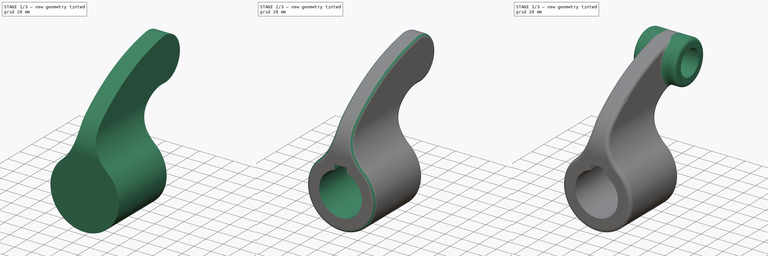
[diagram: build sequence overview — one tinted view per stage of 3, left to right]
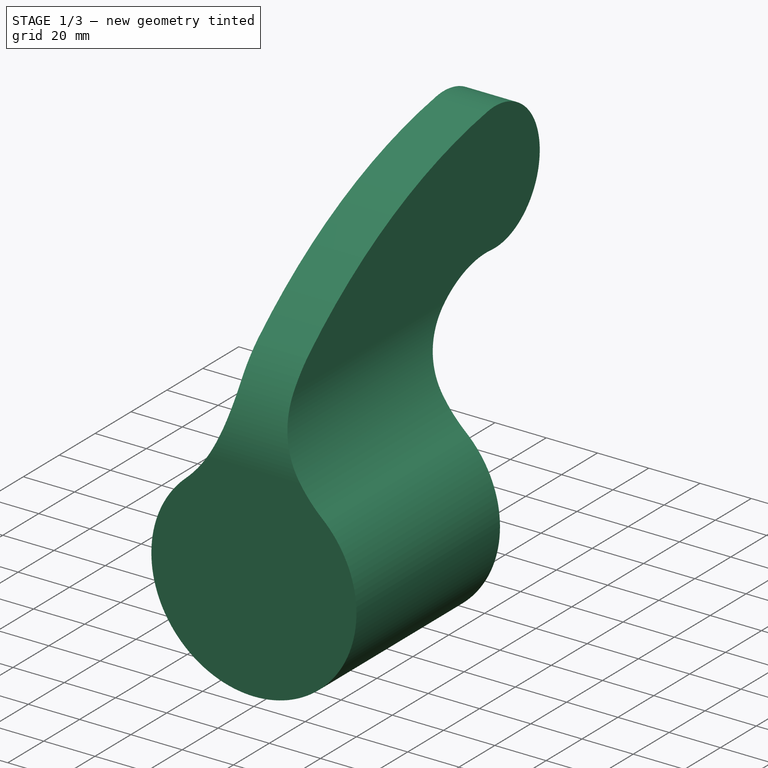
[diagram: stage 1 of 3 — iso view after this stage's code; geometry added in this stage tinted green]
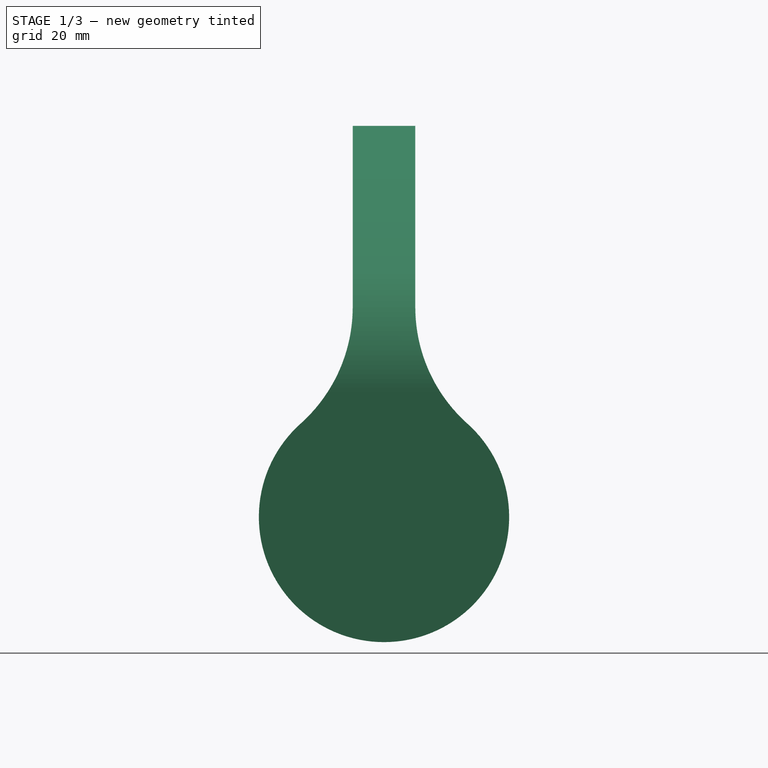
[diagram: stage 1 of 3 — front view after this stage's code; geometry added in this stage tinted green]
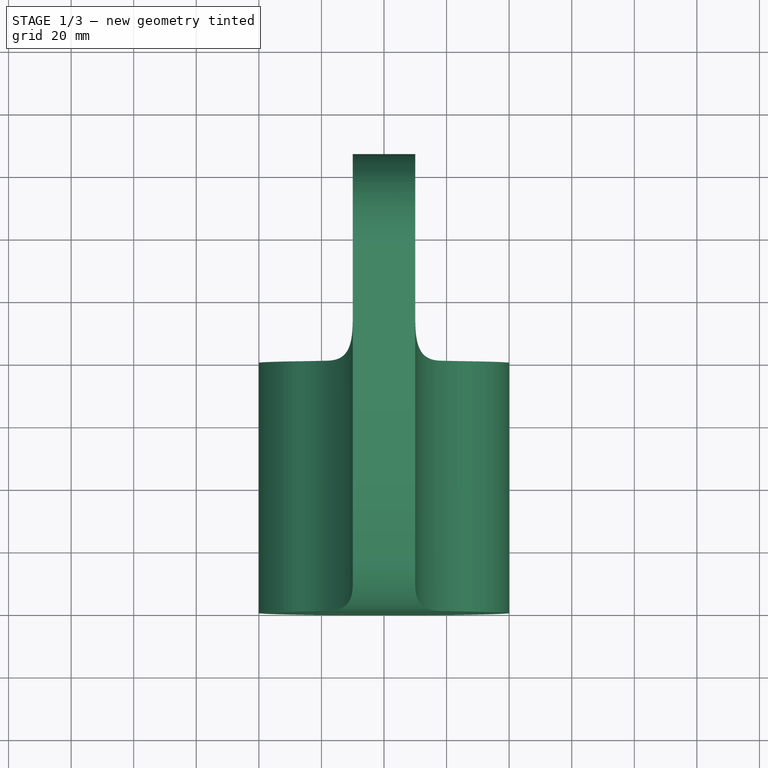
[diagram: stage 1 of 3 — top view after this stage's code; geometry added in this stage tinted green]
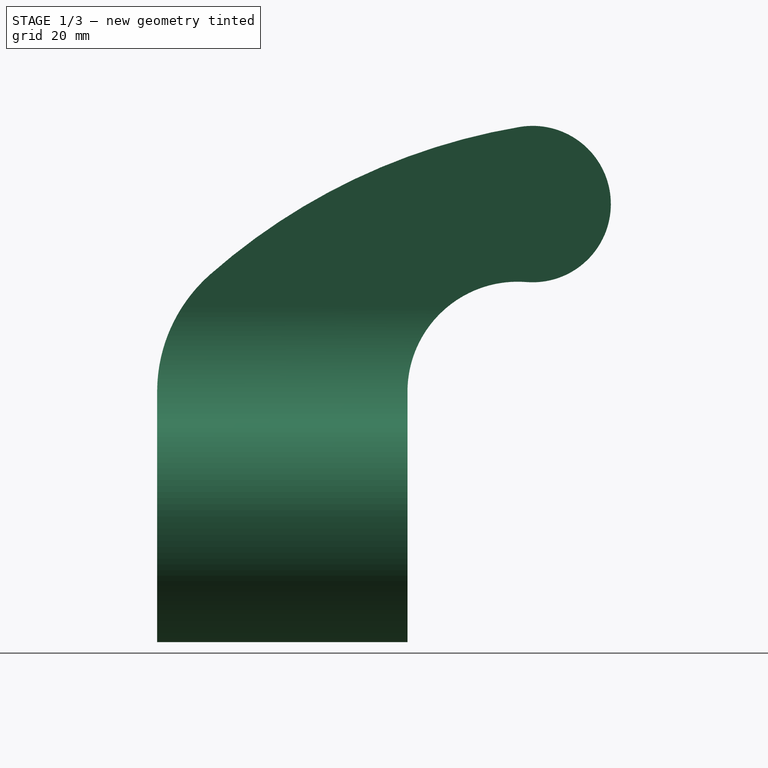
[diagram: stage 1 of 3 — right view after this stage's code; geometry added in this stage tinted green]
FCSTD DOCUMENT  (FreeCAD 1.0R39319 (Git))
Label: Mania2007
License: All rights reserved
LicenseURL: https://en.wikipedia.org/wiki/All_rights_reserved
objects: Sketcher::SketchObject×5, PartDesign::Pad×3, PartDesign::Body×2, PartDesign::Pocket×2, PartDesign::Fillet×2, PartDesign::Boolean×1
note: 35 computed .brp shape members not serialized (recipe doc carries the construction recipe); baked Part::Feature solids carry a one-line shape summary decoded from their .brp

FEATURE [Sketcher::SketchObject] Sketch
  ArcFitTolerance = 1e-06
  AttachmentSupport = -> [XZ_Plane]
  FullyConstrained = true
  MakeInternals = false
  MapMode = 5
  Placement = pos=(0,0,0) rot=(1,0,0;1.5708rad)
  sketch-geometry (6):
    g0: ArcOfCircle CenterX=0 CenterY=-40 CenterZ=0 NormalX=0 NormalY=0 NormalZ=1 AngleXU=0 Radius=40 StartAngle=2.30052 EndAngle=7.12425
    g1: LineSegment StartX=-10 StartY=27.082 StartZ=0 EndX=-10 EndY=177.082 EndZ=0
    g2: LineSegment StartX=-10 StartY=177.082 StartZ=0 EndX=10 EndY=177.082 EndZ=0
    g3: LineSegment StartX=10 StartY=177.082 StartZ=0 EndX=10 EndY=27.082 EndZ=0
    g4: ArcOfCircle CenterX=60 CenterY=27.082 CenterZ=0 NormalX=0 NormalY=0 NormalZ=1 AngleXU=0 Radius=50 StartAngle=3.14159 EndAngle=3.98266
    g5: ArcOfCircle CenterX=-60 CenterY=27.082 CenterZ=0 NormalX=0 NormalY=0 NormalZ=1 AngleXU=0 Radius=50 StartAngle=5.44212 EndAngle=6.28319
  constraints (16):
    c: PointOnObject(g0,g-2)
    c: Diameter(g0) = 80
    c: Tangent(g0,g-1)
    c: Vertical(g1)
    c: Coincident(g1,g2)
    c: Coincident(g2,g3)
    c: Vertical(g3)
    c: DistanceX(g2,g2) = 20
    c: Symmetric(g2,g1,g-2)
    c: Radius(g4) = 50
    c: Tangent(g3,g4) = -1.5708
    c: Tangent(g0,g4) = 1.5708
    c: Equal(g4,g5)
    c: Tangent(g1,g5) = -1.5708
    c: Tangent(g0,g5) = 1.5708
    c: DistanceY(g3,g3) = 150
FEATURE [PartDesign::Pad] Pad  label="frontpad"
  Direction = (0,-1,2e-16)
  Length = 160
  Length2 = 10
  Placement = pos=(0,0,0) rot=(1,0,0;1.5708rad)
  Profile = -> Sketch
  ReferenceAxis = -> Sketch [N_Axis]
  Refine = true
  Reversed = true
  Suppressed = false
  Type = 0
FEATURE [Sketcher::SketchObject] Sketch004
  ArcFitTolerance = 1e-06
  AttachmentSupport = -> [YZ_Plane001]
  FullyConstrained = true
  MakeInternals = false
  MapMode = 5
  Placement = pos=(0,0,0) rot=(0.57735,0.57735,0.57735;2.0944rad)
  sketch-geometry (8):
    g0: LineSegment StartX=0 StartY=6.1e-15 StartZ=0 EndX=0 EndY=-80 EndZ=0
    g1: LineSegment StartX=0 StartY=-80 StartZ=0 EndX=80 EndY=-80 EndZ=0
    g2: LineSegment StartX=80 StartY=-80 StartZ=0 EndX=80 EndY=7.8302e-12 EndZ=0
    g3: ArcOfCircle CenterX=50 CenterY=0 CenterZ=0 NormalX=0 NormalY=0 NormalZ=1 AngleXU=0 Radius=50 StartAngle=2.29298 EndAngle=3.14159
    g4: ArcOfCircle CenterX=115.192 CenterY=-1.72481e-05 CenterZ=0 NormalX=0 NormalY=0 NormalZ=1 AngleXU=0 Radius=35.1923 StartAngle=1.49084 EndAngle=3.14159
    g5: ArcOfCircle CenterX=120 CenterY=60 CenterZ=0 NormalX=0 NormalY=0 NormalZ=1 AngleXU=0 Radius=25 StartAngle=4.63243 EndAngle=8.02135
    g6: GeomPoint X=80 Y=-40 Z=0
    g7: ArcOfCircle CenterX=149.154 CenterY=-112.555 CenterZ=0 NormalX=0 NormalY=0 NormalZ=1 AngleXU=0 Radius=200 StartAngle=1.73817 EndAngle=2.29298
  constraints (21):
    c: Coincident(g-1,g0)
    c: PointOnObject(g0,g-2)
    c: Coincident(g0,g1)
    c: Horizontal(g1)
    c: Coincident(g1,g2)
    c: PointOnObject(g2,g-1)
    c: DistanceY(g0,g0) = 80
    c: Equal(g0,g2)
    c: DistanceX(g1,g1) = 80
    c: PointOnObject(g3,g-1)
    c: Coincident(g3,g0)
    c: Radius(g3) = 50
    c: Radius(g5) = 25
    c: Symmetric(g2,g2,g6)
    c: Distance(g5,g2) = 40
    c: DistanceY(g6,g5) = 100
    c: Tangent(g4,g5) = 1.5708
    c: Tangent(g7,g3) = -1.5708
    c: Tangent(g7,g5) = -1.5708
    c: Radius(g7) = 200
    c: Tangent(g4,g2) = 1.5708
FEATURE [PartDesign::Pad] Pad001  label="rightpad"
  Direction = (1,0,0)
  Length = 100
  Length2 = 10
  Midplane = true
  Placement = pos=(0,0,0) rot=(1,1,1;2.0944rad)
  Profile = -> Sketch004
  ReferenceAxis = -> Sketch004 [N_Axis]
  Refine = true
  Suppressed = false
  Type = 0
FEATURE [PartDesign::Body] Body001
  AllowCompound = false
  Group = -> [Pad001,Sketch004]
  Origin = -> Origin001
  Tip = -> Pad001
FEATURE [PartDesign::Boolean] Boolean
  BaseFeature = -> Pad
  Group = -> [Body001]
  Refine = true
  Suppressed = false
  Type = 2
  UsePlacement = true
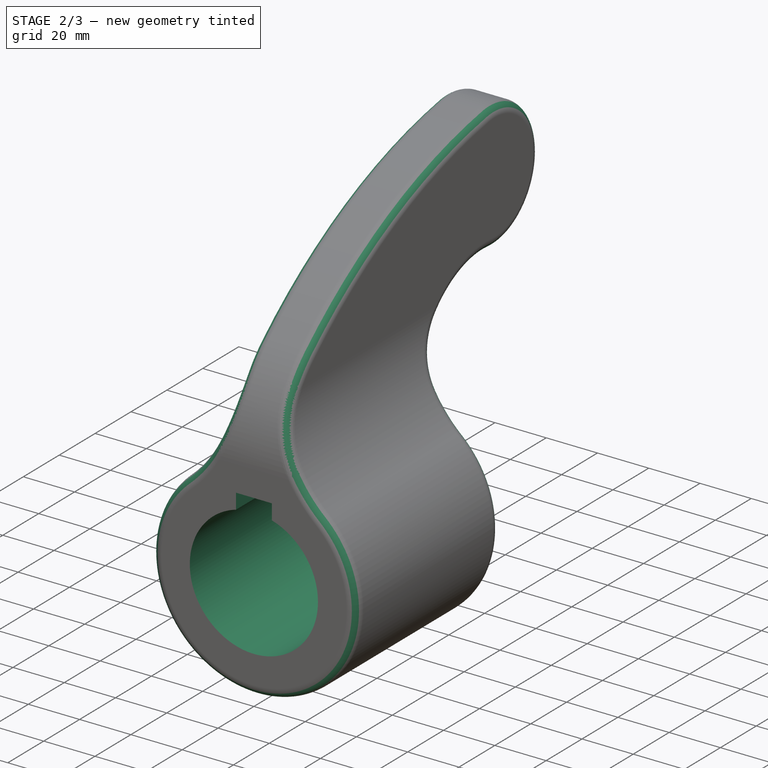
[diagram: stage 2 of 3 — iso view after this stage's code; geometry added in this stage tinted green]
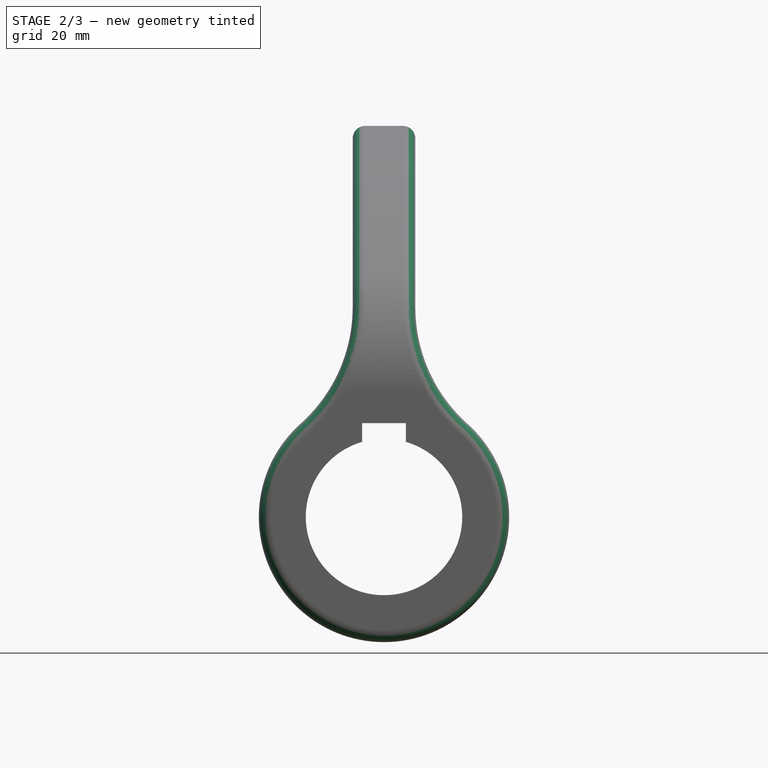
[diagram: stage 2 of 3 — front view after this stage's code; geometry added in this stage tinted green]
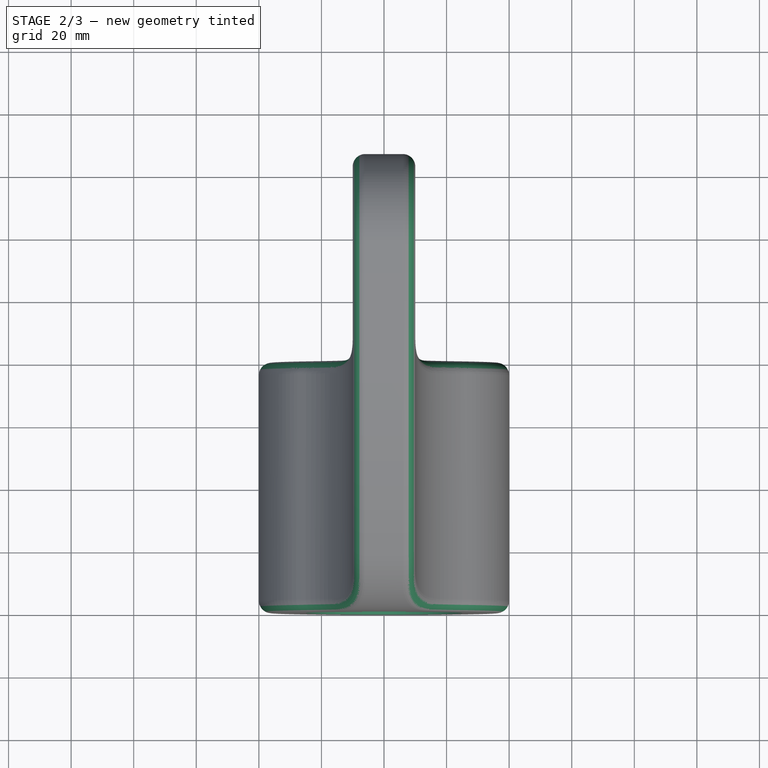
[diagram: stage 2 of 3 — top view after this stage's code; geometry added in this stage tinted green]
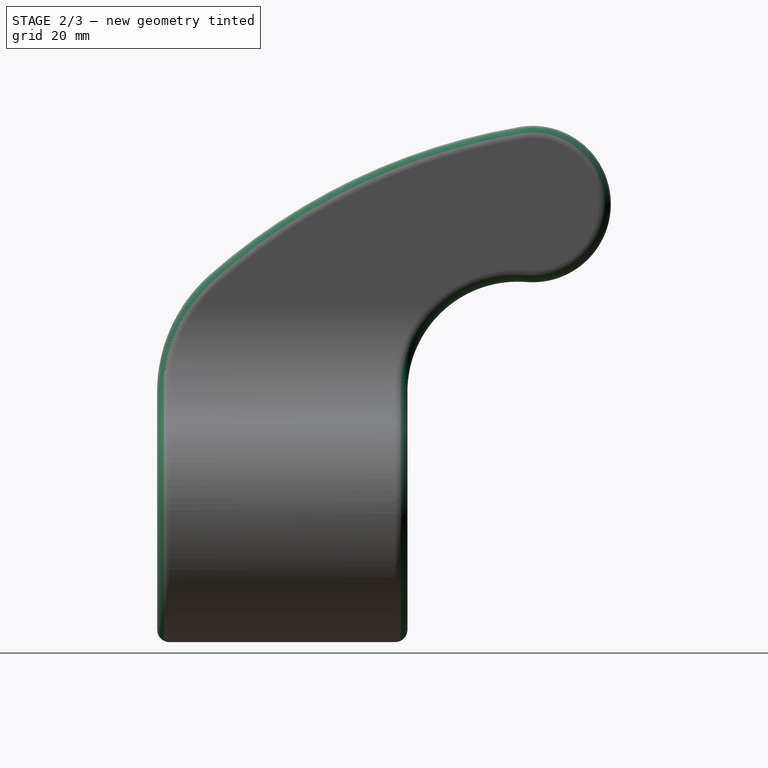
[diagram: stage 2 of 3 — right view after this stage's code; geometry added in this stage tinted green]
FEATURE [Sketcher::SketchObject] Sketch005
  ArcFitTolerance = 1e-06
  AttachmentSupport = -> [Boolean]
  ExternalGeometry = -> [Boolean]
  FullyConstrained = true
  MakeInternals = false
  MapMode = 5
  Placement = pos=(0,1.02e-14,0) rot=(1,0,0;1.5708rad)
  sketch-geometry (5):
    g0: ArcOfCircle CenterX=0 CenterY=-40 CenterZ=0 NormalX=0 NormalY=0 NormalZ=1 AngleXU=0 Radius=25 StartAngle=1.85459 EndAngle=7.57019
    g1: LineSegment StartX=-7 StartY=-16 StartZ=0 EndX=-7 EndY=-10 EndZ=0
    g2: LineSegment StartX=-7 StartY=-10 StartZ=0 EndX=7 EndY=-10 EndZ=0
    g3: LineSegment StartX=7 StartY=-10 StartZ=0 EndX=7 EndY=-16 EndZ=0
    g4: GeomPoint X=0 Y=-65 Z=0
  constraints (13):
    c: Coincident(g0,g-3)
    c: Coincident(g1,g2)
    c: Coincident(g2,g3)
    c: Symmetric(g2,g1,g-2)
    c: Parallel(g3,g1)
    c: Vertical(g1)
    c: DistanceX(g2,g2) = 14
    c: Coincident(g0,g3)
    c: Coincident(g0,g1)
    c: Diameter(g0) = 50
    c: PointOnObject(g4,g0)
    c: PointOnObject(g4,g-2)
    c: Distance(g4,g2) = 55
FEATURE [PartDesign::Pocket] Pocket
  BaseFeature = -> Boolean
  Direction = (0,1,-2e-16)
  Length = 5
  Length2 = 5
  Profile = -> Sketch005
  ReferenceAxis = -> Sketch005 [N_Axis]
  Refine = true
  Suppressed = false
  Type = 1
FEATURE [PartDesign::Fillet] Fillet
  Base = -> Pocket [Edge41,Edge27,Edge38,Edge25]
  BaseFeature = -> Pocket
  Radius = 4
  Refine = true
  SupportTransform = false
  Suppressed = false
  UseAllEdges = false
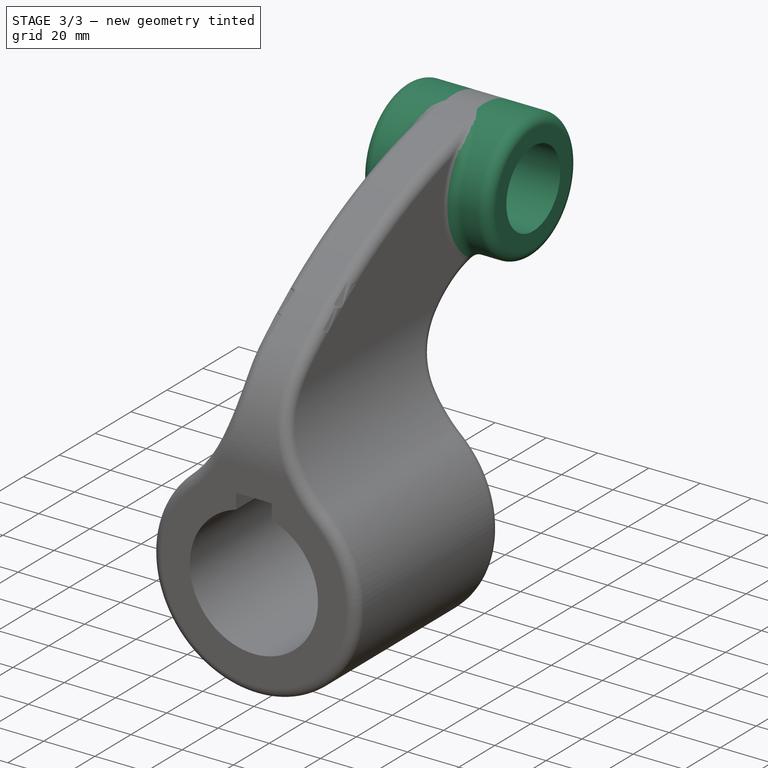
[diagram: stage 3 of 3 — iso view after this stage's code; geometry added in this stage tinted green]
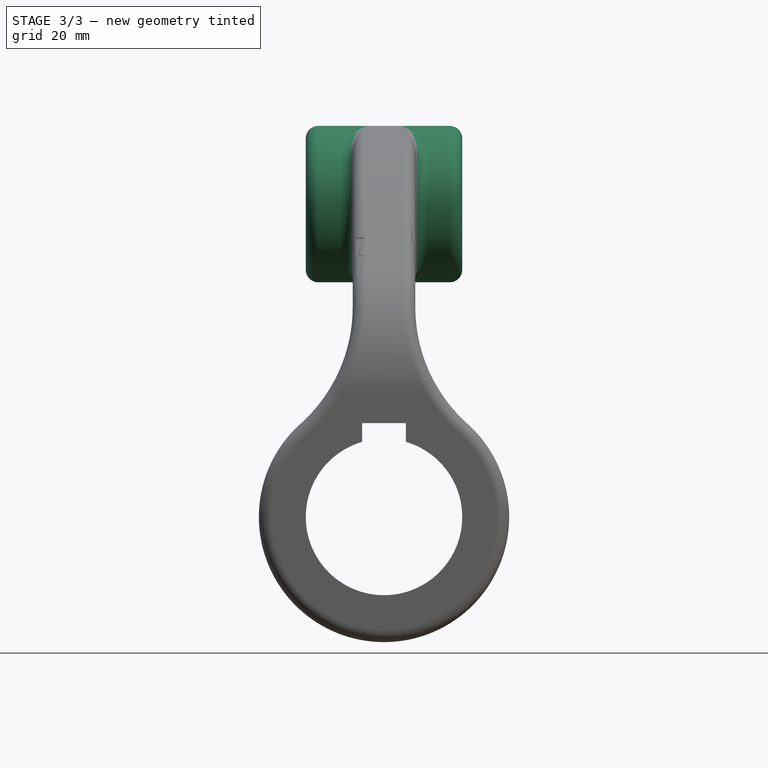
[diagram: stage 3 of 3 — front view after this stage's code; geometry added in this stage tinted green]
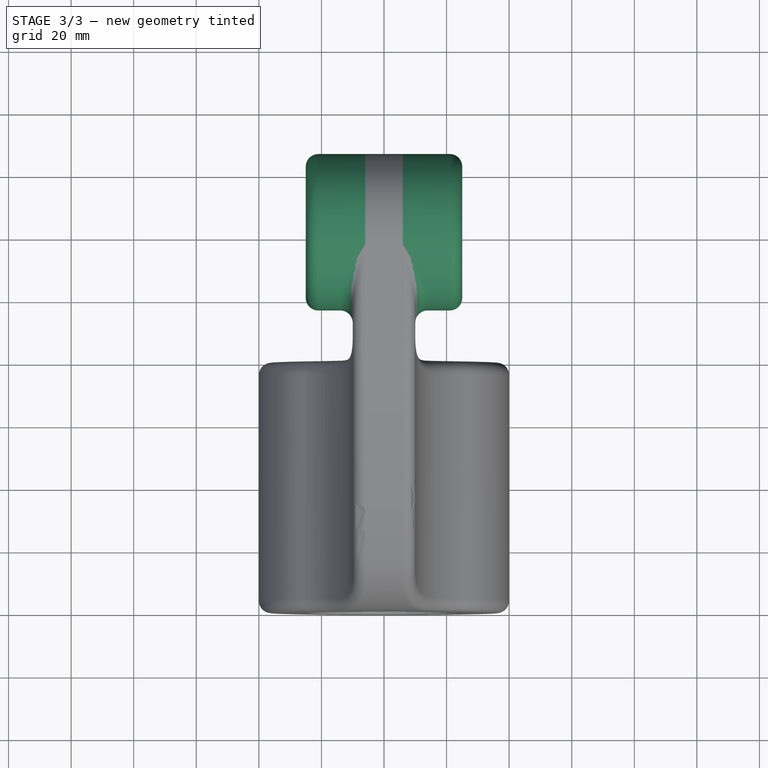
[diagram: stage 3 of 3 — top view after this stage's code; geometry added in this stage tinted green]
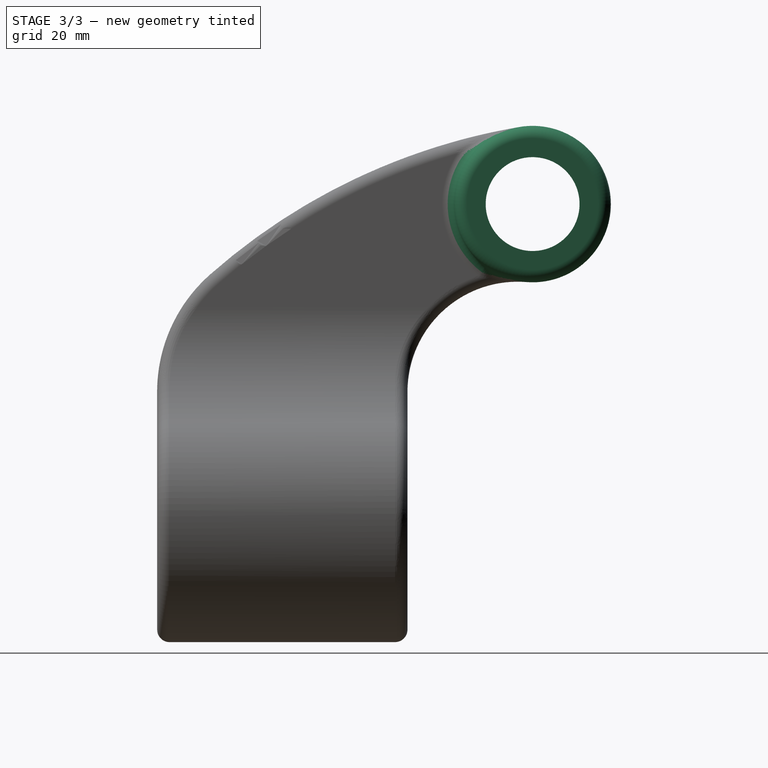
[diagram: stage 3 of 3 — right view after this stage's code; geometry added in this stage tinted green]
FEATURE [Sketcher::SketchObject] Sketch006
  ArcFitTolerance = 1e-06
  AttachmentSupport = -> [YZ_Plane]
  ExternalGeometry = -> [Fillet]
  FullyConstrained = true
  MakeInternals = false
  MapMode = 5
  Placement = pos=(0,0,0) rot=(0.57735,0.57735,0.57735;2.0944rad)
  sketch-geometry (1):
    g0: Circle CenterX=120 CenterY=60 CenterZ=0 NormalX=0 NormalY=0 NormalZ=1 AngleXU=0 Radius=25
  constraints (2):
    c: Coincident(g0,g-3)
    c: Radius(g0) = 25
FEATURE [PartDesign::Pad] Pad002
  BaseFeature = -> Fillet
  Direction = (1,0,0)
  Length = 50
  Length2 = 10
  Midplane = true
  Profile = -> Sketch006
  ReferenceAxis = -> Sketch006 [N_Axis]
  Suppressed = false
  Type = 0
FEATURE [Sketcher::SketchObject] Sketch007
  ArcFitTolerance = 1e-06
  AttachmentSupport = -> [YZ_Plane]
  ExternalGeometry = -> [Pad002]
  FullyConstrained = true
  MakeInternals = false
  MapMode = 5
  Placement = pos=(0,0,0) rot=(0.57735,0.57735,0.57735;2.0944rad)
  sketch-geometry (1):
    g0: Circle CenterX=120 CenterY=60 CenterZ=0 NormalX=0 NormalY=0 NormalZ=1 AngleXU=0 Radius=15
  constraints (2):
    c: Diameter(g0) = 30
    c: Coincident(g0,g-3)
FEATURE [PartDesign::Fillet] Fillet001
  Base = -> Pad002 [Edge64,Edge85,Edge56,Edge80]
  BaseFeature = -> Pad002
  Radius = 4
  Refine = true
  SupportTransform = false
  Suppressed = false
  UseAllEdges = false
FEATURE [PartDesign::Pocket] Pocket001
  BaseFeature = -> Fillet001
  Direction = (-1,0,0)
  Length = 5
  Length2 = 5
  Midplane = true
  Profile = -> Sketch007
  ReferenceAxis = -> Sketch007 [N_Axis]
  Refine = true
  Suppressed = false
  Type = 1
FEATURE [PartDesign::Body] Body
  AllowCompound = false
  Group = -> [Pad,Sketch,Boolean,Sketch005,Pocket,Fillet,Sketch006,Pad002,Sketch007,Fillet001,Pocket001]
  Origin = -> Origin
  Tip = -> Pocket001
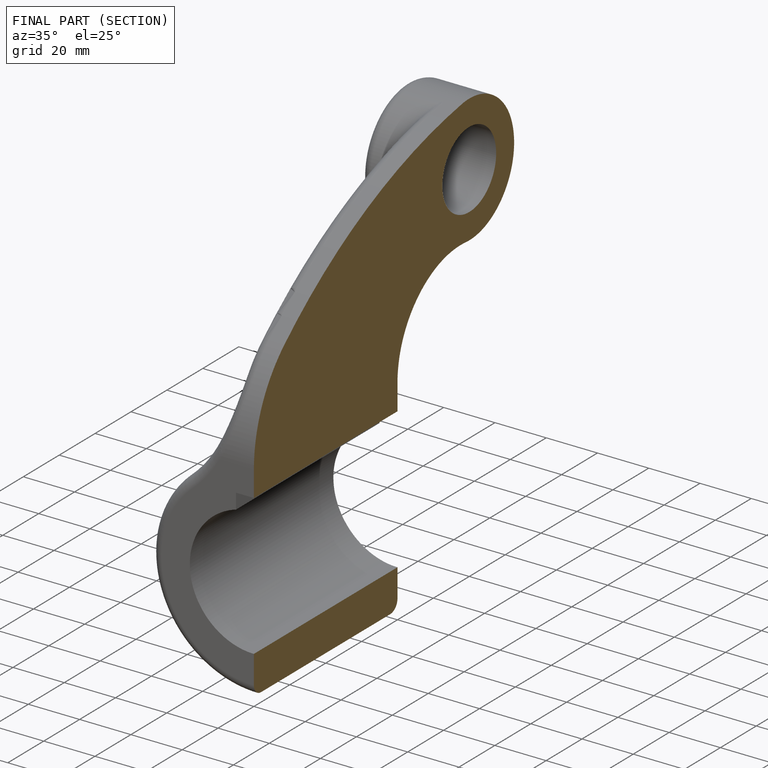
[diagram: finished part — half-section view (interior)]
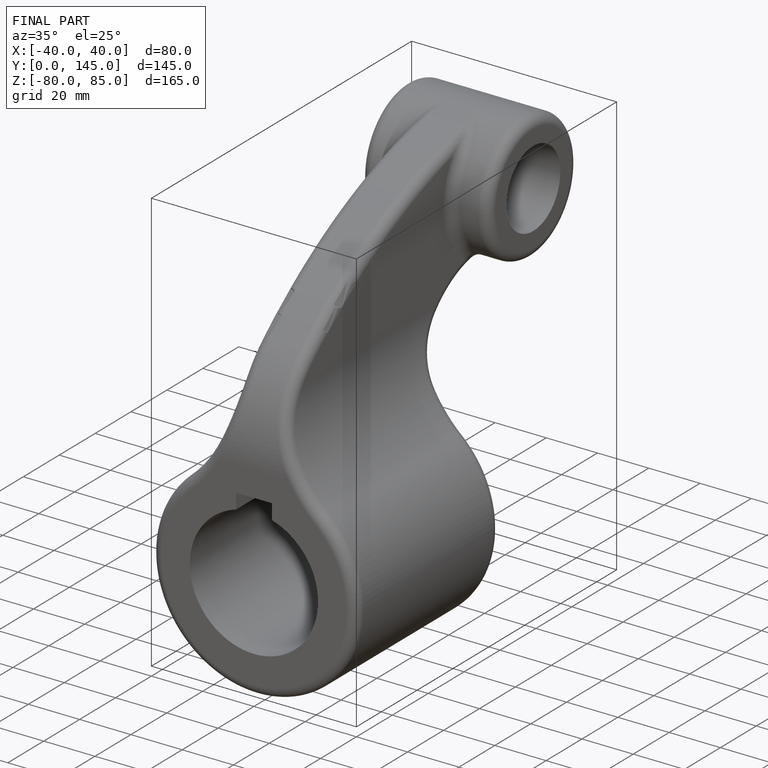
[diagram: finished part — iso view with bounding-box wireframe]
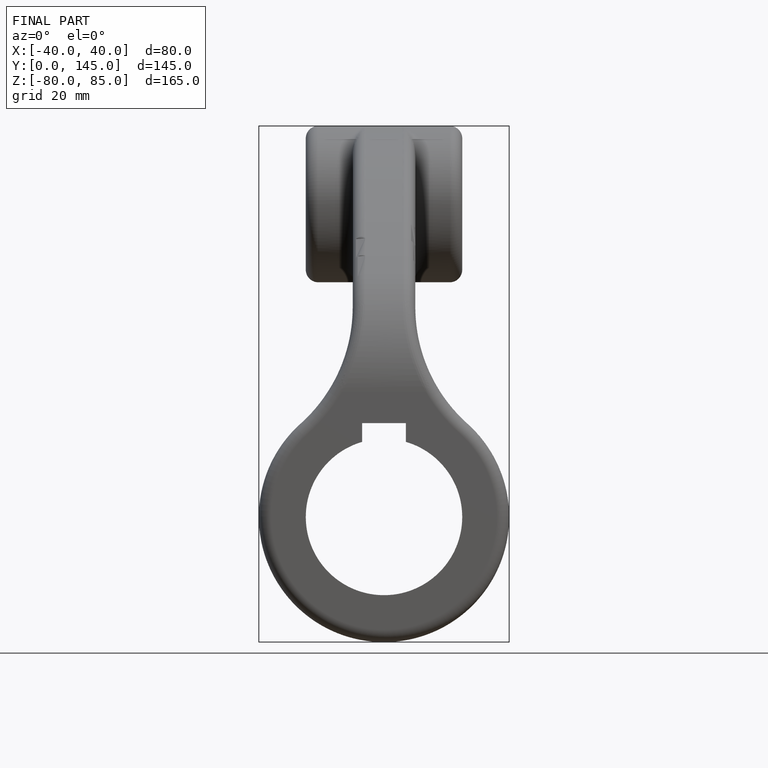
[diagram: finished part — front view with bounding-box wireframe]
